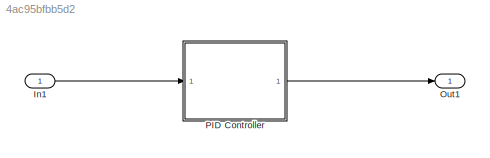
MODEL slx_4ac95bfbb5d2
KIND model
BLOCK [Inport] In1
  IconDisplay = Port number
BLOCK [Outport] Out1
  IconDisplay = Port number
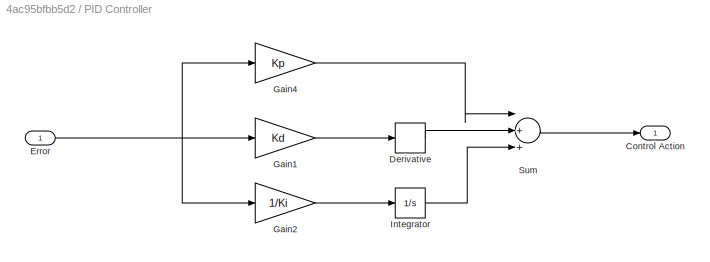
BLOCK [SubSystem] PID Controller
  Ports = [1, 1]
  RequestExecContextInheritance = off
BLOCK [Outport] PID Controller/Control Action 
  IconDisplay = Port number
BLOCK [Derivative] PID Controller/Derivative
BLOCK [Inport] PID Controller/Error
  IconDisplay = Port number
BLOCK [Gain] PID Controller/Gain1
  Gain = Kd
  OutDataTypeStr = Inherit: Inherit via internal rule
  ParamDataTypeStr = Inherit: Inherit via internal rule
  SaturateOnIntegerOverflow = off
BLOCK [Gain] PID Controller/Gain2
  Gain = 1/Ki
  OutDataTypeStr = Inherit: Inherit via internal rule
  ParamDataTypeStr = Inherit: Inherit via internal rule
  SaturateOnIntegerOverflow = off
BLOCK [Gain] PID Controller/Gain4
  Gain = Kp
  OutDataTypeStr = Inherit: Inherit via internal rule
  ParamDataTypeStr = Inherit: Inherit via internal rule
  SaturateOnIntegerOverflow = off
BLOCK [Integrator] PID Controller/Integrator
  Ports = [1, 1]
BLOCK [Sum] PID Controller/Sum
  InputSameDT = off
  Inputs = |+++
  OutDataTypeStr = Inherit: Inherit via internal rule
  Ports = [3, 1]
  SaturateOnIntegerOverflow = off
LINE In1:1 -> PID Controller:1
LINE PID Controller/Derivative:1 -> PID Controller/Sum:2
NET PID Controller/Error:1 -> PID Controller/Gain1:1, PID Controller/Gain2:1, PID Controller/Gain4:1
LINE PID Controller/Gain1:1 -> PID Controller/Derivative:1
LINE PID Controller/Gain2:1 -> PID Controller/Integrator:1
LINE PID Controller/Gain4:1 -> PID Controller/Sum:1
LINE PID Controller/Integrator:1 -> PID Controller/Sum:3
LINE PID Controller/Sum:1 -> PID Controller/Control Action :1
LINE PID Controller:1 -> Out1:1
note: NET lines group one-source signal fan-out (src -> all destinations, sorted); 1:1 wires keep LINE
